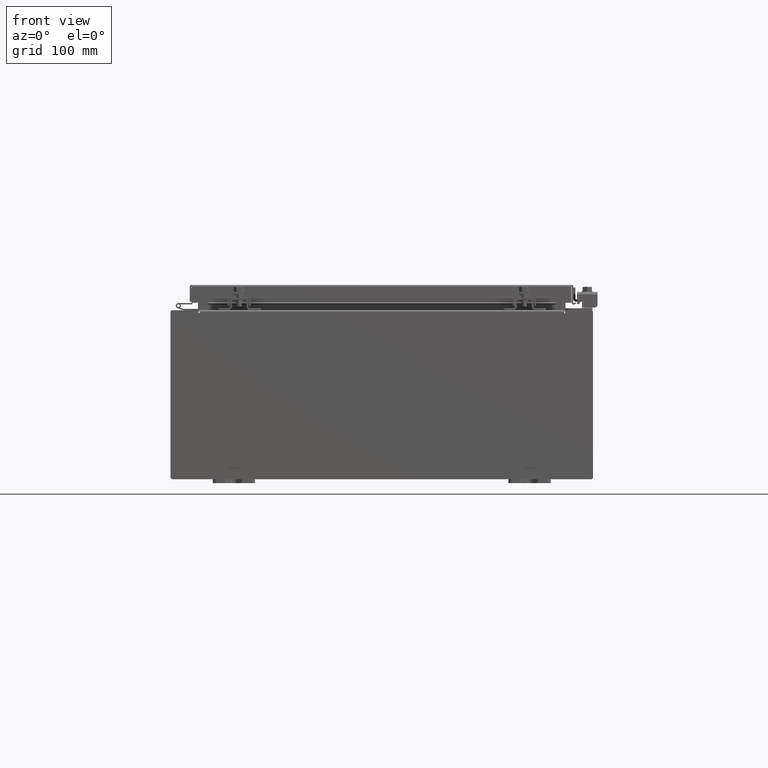
[diagram: clean part render]
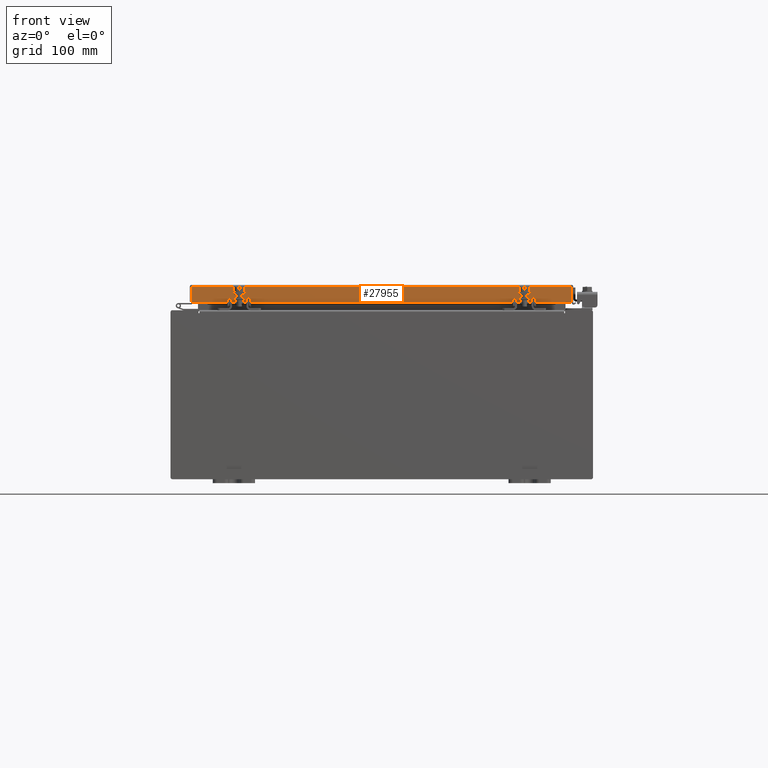
[diagram: same view with one face highlighted and labeled with its STEP entity id]
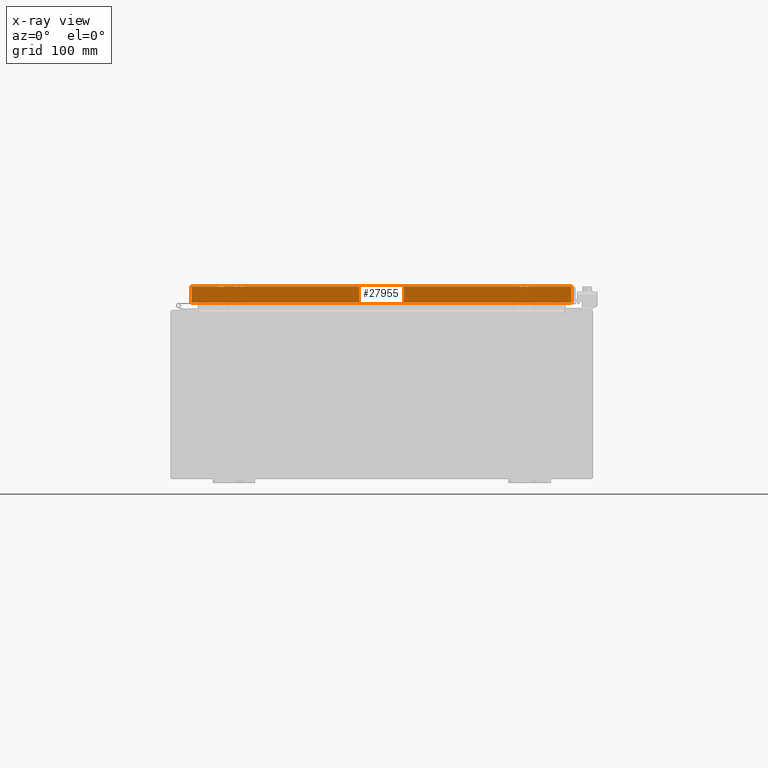
[diagram: x-ray of the same camera — body ghosted, the highlighted face saturated]
A machine part, front view. The second image highlights one B-rep face of the part: STEP entity #27955.
The next image is the same camera in x-ray: the body ghosted, the highlighted face saturated — about 0% of this face is hidden behind the body in this view.
In plain terms, the highlighted planar face has unit normal (-0, 1, -0).
Its self-contained STEP definition (entity closure, byte-faithful):
#720 = VERTEX_POINT ( 'NONE', #16636 ) ;
#2354 = CARTESIAN_POINT ( 'NONE',  ( 9.077999999999999400, -11.09400000000000300, -0.8499999999999999800 ) ) ;
#2586 = VECTOR ( 'NONE', #16578, 39.37007874015748100 ) ;
#3945 = LINE ( 'NONE', #10372, #9906 ) ;
#6594 = EDGE_CURVE ( 'NONE', #28591, #720, #26720, .T. ) ;
#6740 = ORIENTED_EDGE ( 'NONE', *, *, #24635, .F. ) ;
#6816 = LINE ( 'NONE', #6934, #15176 ) ;
#6934 = CARTESIAN_POINT ( 'NONE',  ( 9.077999999999999400, -11.09400000000000100, -0.08770000000000026400 ) ) ;
#8411 = VECTOR ( 'NONE', #27068, 39.37007874015748100 ) ;
#9279 = CARTESIAN_POINT ( 'NONE',  ( -8.989157864376267100, -11.09400000000000100, 3.168943672650545400E-014 ) ) ;
#9494 = DIRECTION ( 'NONE',  ( 1.000000000000000000, 1.203722403024570700E-016, -1.203722403024570700E-016 ) ) ;
#9906 = VECTOR ( 'NONE', #28179, 39.37007874015748100 ) ;
#10012 = LINE ( 'NONE', #9279, #8411 ) ;
#10016 = ORIENTED_EDGE ( 'NONE', *, *, #6594, .F. ) ;
#10089 = DIRECTION ( 'NONE',  ( 0.0000000000000000000, 2.818880942772360100E-015, 1.000000000000000000 ) ) ;
#10372 = CARTESIAN_POINT ( 'NONE',  ( 9.077999999999999400, -11.09400000000000300, -0.8499999999999999800 ) ) ;
#11260 = VERTEX_POINT ( 'NONE', #24959 ) ;
#12487 = CARTESIAN_POINT ( 'NONE',  ( 8.239157864376267100, -11.09399999999999900, -0.8500000000000020900 ) ) ;
#12835 = ORIENTED_EDGE ( 'NONE', *, *, #13182, .T. ) ;
#13182 = EDGE_CURVE ( 'NONE', #14523, #22256, #10012, .T. ) ;
#13240 = EDGE_CURVE ( 'NONE', #14523, #11260, #6816, .T. ) ;
#14523 = VERTEX_POINT ( 'NONE', #14984 ) ;
#14984 = CARTESIAN_POINT ( 'NONE',  ( -8.989157864376267100, -11.09400000000000100, -0.08769999999999808500 ) ) ;
#15176 = VECTOR ( 'NONE', #9494, 39.37007874015748100 ) ;
#16578 = DIRECTION ( 'NONE',  ( -0.0000000000000000000, -2.818880942772360100E-015, -1.000000000000000000 ) ) ;
#16636 = CARTESIAN_POINT ( 'NONE',  ( -8.239157864376267100, -11.09399999999999900, -0.8500000000000020900 ) ) ;
#17571 = ORIENTED_EDGE ( 'NONE', *, *, #13240, .F. ) ;
#18576 = DIRECTION ( 'NONE',  ( -1.000000000000000000, 0.0000000000000000000, 0.0000000000000000000 ) ) ;
#18673 = CARTESIAN_POINT ( 'NONE',  ( 8.239157864376267100, -11.09399999999999900, -0.8500000000000020900 ) ) ;
#19225 = ORIENTED_EDGE ( 'NONE', *, *, #19320, .F. ) ;
#19320 = EDGE_CURVE ( 'NONE', #11260, #25917, #22049, .T. ) ;
#21688 = FACE_OUTER_BOUND ( 'NONE', #32732, .T. ) ;
#22049 = LINE ( 'NONE', #29268, #2586 ) ;
#22256 = VERTEX_POINT ( 'NONE', #23246 ) ;
#22746 = PLANE ( 'NONE',  #32586 ) ;
#23246 = CARTESIAN_POINT ( 'NONE',  ( -8.989157864376267100, -11.09400000000000700, -0.8499999999999977600 ) ) ;
#23742 = VECTOR ( 'NONE', #30361, 39.37007874015748100 ) ;
#24635 = EDGE_CURVE ( 'NONE', #720, #22256, #30531, .T. ) ;
#24959 = CARTESIAN_POINT ( 'NONE',  ( 8.989157864376267100, -11.09400000000000100, -0.08769999999999918100 ) ) ;
#25209 = CARTESIAN_POINT ( 'NONE',  ( 1.336044409401428800E-015, -11.09400000000000100, 3.168943672650545400E-014 ) ) ;
#25307 = DIRECTION ( 'NONE',  ( -1.203722403024574200E-016, 1.000000000000000000, -2.818880942772360100E-015 ) ) ;
#25917 = VERTEX_POINT ( 'NONE', #28189 ) ;
#26720 = LINE ( 'NONE', #18673, #27529 ) ;
#27068 = DIRECTION ( 'NONE',  ( 0.0000000000000000000, -2.818880942772360100E-015, -1.000000000000000000 ) ) ;
#27529 = VECTOR ( 'NONE', #18576, 39.37007874015748100 ) ;
#27955 = ADVANCED_FACE ( 'NONE', ( #21688 ), #22746, .F. ) ;
#28179 = DIRECTION ( 'NONE',  ( -1.000000000000000000, -1.203722403024570700E-016, 1.203722403024570700E-016 ) ) ;
#28189 = CARTESIAN_POINT ( 'NONE',  ( 8.989157864376267100, -11.09400000000000300, -0.8499999999999999800 ) ) ;
#28591 = VERTEX_POINT ( 'NONE', #12487 ) ;
#29268 = CARTESIAN_POINT ( 'NONE',  ( 8.989157864376267100, -11.09400000000000100, -0.07470000000000015500 ) ) ;
#30361 = DIRECTION ( 'NONE',  ( -1.000000000000000000, -1.203722403024570700E-016, 1.203722403024570700E-016 ) ) ;
#30531 = LINE ( 'NONE', #2354, #23742 ) ;
#31265 = ORIENTED_EDGE ( 'NONE', *, *, #32839, .F. ) ;
#32586 = AXIS2_PLACEMENT_3D ( 'NONE', #25209, #25307, #10089 ) ;
#32732 = EDGE_LOOP ( 'NONE', ( #17571, #12835, #6740, #10016, #31265, #19225 ) ) ;
#32839 = EDGE_CURVE ( 'NONE', #25917, #28591, #3945, .T. ) ;